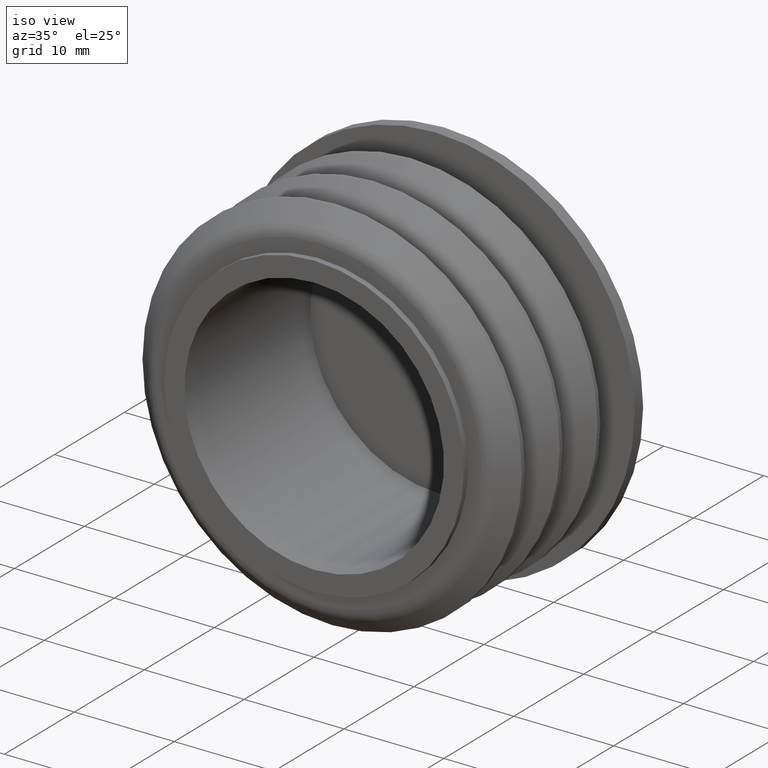
[diagram: clean part render]
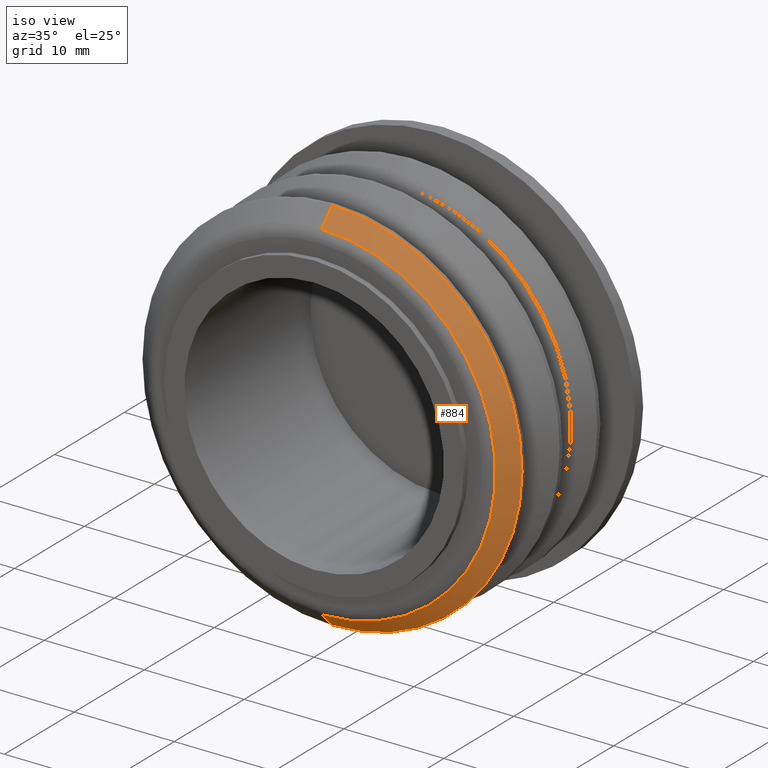
[diagram: same view with one face highlighted and labeled with its STEP entity id]
A machine part, iso view. The second image highlights one B-rep face of the part: STEP entity #884.
In plain terms, the highlighted conical surface has half-angle 45 deg.
Its self-contained STEP definition (entity closure, byte-faithful):
#22 = FACE_OUTER_BOUND ( 'NONE', #414, .T. ) ;
#26 = AXIS2_PLACEMENT_3D ( 'NONE', #169, #873, #712 ) ;
#98 = DIRECTION ( 'NONE',  ( 0.000000000000000000, 0.000000000000000000, 1.000000000000000000 ) ) ;
#142 = DIRECTION ( 'NONE',  ( 8.659560562354937789E-17, 0.7071067811865472397, -0.7071067811865479058 ) ) ;
#159 = LINE ( 'NONE', #348, #934 ) ;
#161 = ORIENTED_EDGE ( 'NONE', *, *, #942, .T. ) ;
#169 = CARTESIAN_POINT ( 'NONE',  ( 0.000000000000000000, 1.039339828220180229, 0.000000000000000000 ) ) ;
#172 = CARTESIAN_POINT ( 'NONE',  ( 0.000000000000000000, 0.6000000000000033085, 17.00000000000000000 ) ) ;
#200 = CARTESIAN_POINT ( 'NONE',  ( 0.000000000000000000, 1.039339828220180229, 17.43933982822017725 ) ) ;
#261 = CARTESIAN_POINT ( 'NONE',  ( 0.000000000000000000, 2.600000000000003197, -19.00000000000000355 ) ) ;
#306 = EDGE_CURVE ( 'NONE', #699, #831, #159, .T. ) ;
#330 = CARTESIAN_POINT ( 'NONE',  ( 2.231266044183625193E-15, 1.039339828220180229, -17.43933982822017725 ) ) ;
#348 = CARTESIAN_POINT ( 'NONE',  ( 2.081899558550500280E-15, 0.6000000000000033085, -17.00000000000000000 ) ) ;
#377 = ORIENTED_EDGE ( 'NONE', *, *, #306, .T. ) ;
#414 = EDGE_LOOP ( 'NONE', ( #525, #377, #161, #872 ) ) ;
#417 = CARTESIAN_POINT ( 'NONE',  ( 2.326828918379971365E-15, 2.600000000000003197, 19.00000000000000355 ) ) ;
#477 = DIRECTION ( 'NONE',  ( -0.000000000000000000, -1.000000000000000000, -0.000000000000000000 ) ) ;
#525 = ORIENTED_EDGE ( 'NONE', *, *, #1142, .T. ) ;
#544 = CIRCLE ( 'NONE', #26, 17.43933982822017725 ) ;
#579 = DIRECTION ( 'NONE',  ( 0.000000000000000000, 1.000000000000000000, 0.000000000000000000 ) ) ;
#604 = AXIS2_PLACEMENT_3D ( 'NONE', #651, #477, #823 ) ;
#651 = CARTESIAN_POINT ( 'NONE',  ( 0.000000000000000000, 2.600000000000003197, 0.000000000000000000 ) ) ;
#662 = CARTESIAN_POINT ( 'NONE',  ( 0.000000000000000000, 0.6000000000000033085, 0.000000000000000000 ) ) ;
#699 = VERTEX_POINT ( 'NONE', #330 ) ;
#712 = DIRECTION ( 'NONE',  ( 0.000000000000000000, 0.000000000000000000, -1.000000000000000000 ) ) ;
#722 = LINE ( 'NONE', #172, #1106 ) ;
#792 = DIRECTION ( 'NONE',  ( 0.000000000000000000, 0.7071067811865472397, 0.7071067811865479058 ) ) ;
#795 = EDGE_CURVE ( 'NONE', #895, #1119, #722, .T. ) ;
#823 = DIRECTION ( 'NONE',  ( 0.000000000000000000, 0.000000000000000000, -1.000000000000000000 ) ) ;
#831 = VERTEX_POINT ( 'NONE', #261 ) ;
#872 = ORIENTED_EDGE ( 'NONE', *, *, #795, .F. ) ;
#873 = DIRECTION ( 'NONE',  ( 0.000000000000000000, 1.000000000000000000, 0.000000000000000000 ) ) ;
#884 = ADVANCED_FACE ( 'NONE', ( #22 ), #1156, .T. ) ;
#895 = VERTEX_POINT ( 'NONE', #200 ) ;
#907 = AXIS2_PLACEMENT_3D ( 'NONE', #662, #579, #98 ) ;
#934 = VECTOR ( 'NONE', #142, 999.9999999999998863 ) ;
#942 = EDGE_CURVE ( 'NONE', #831, #1119, #1054, .T. ) ;
#1054 = CIRCLE ( 'NONE', #604, 19.00000000000000355 ) ;
#1106 = VECTOR ( 'NONE', #792, 999.9999999999998863 ) ;
#1119 = VERTEX_POINT ( 'NONE', #417 ) ;
#1142 = EDGE_CURVE ( 'NONE', #895, #699, #544, .T. ) ;
#1156 = CONICAL_SURFACE ( 'NONE', #907, 17.00000000000000000, 0.7853981633974487231 ) ;